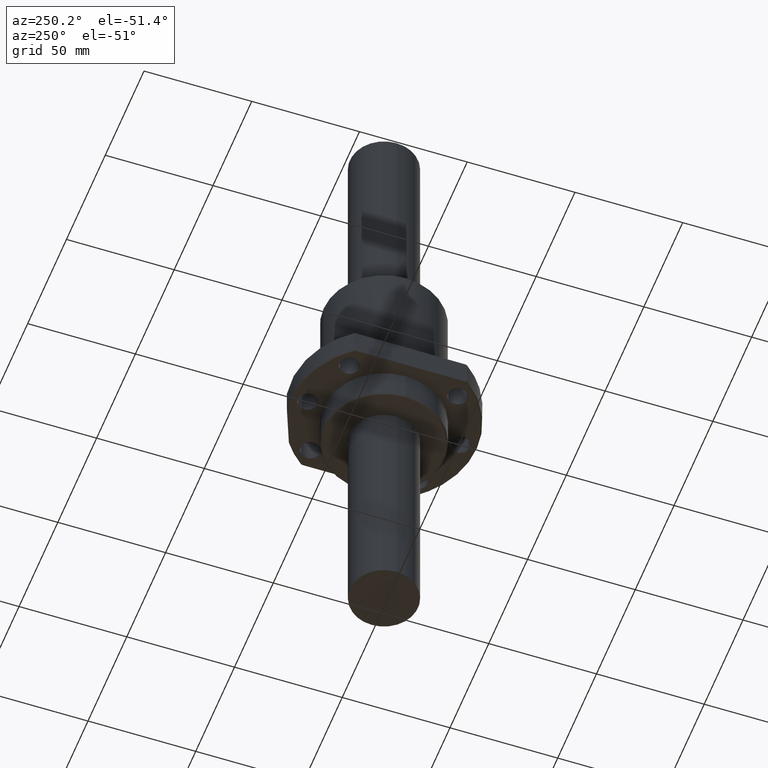
[diagram: clean part render]
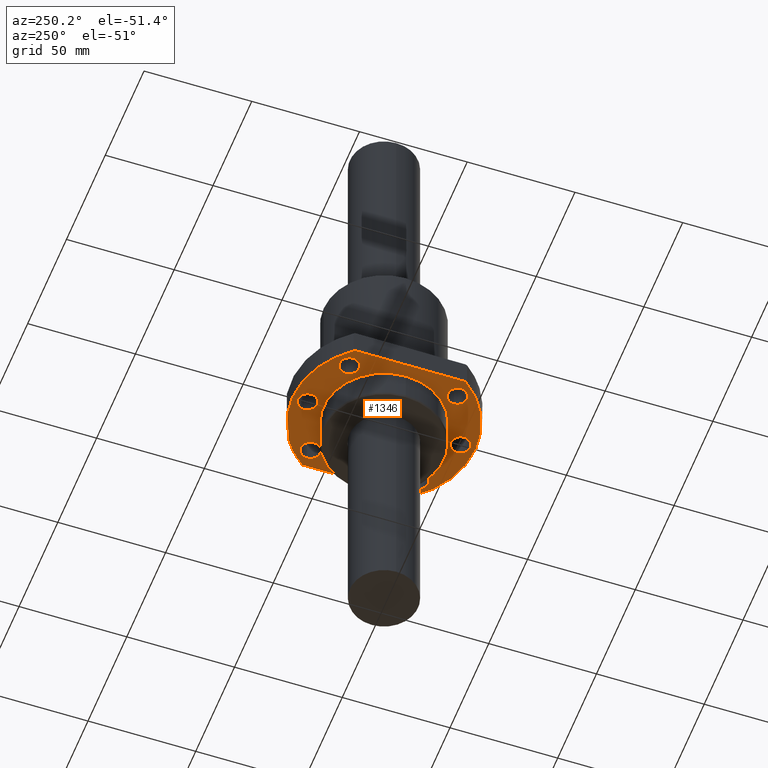
[diagram: same view with one face highlighted and labeled with its STEP entity id]
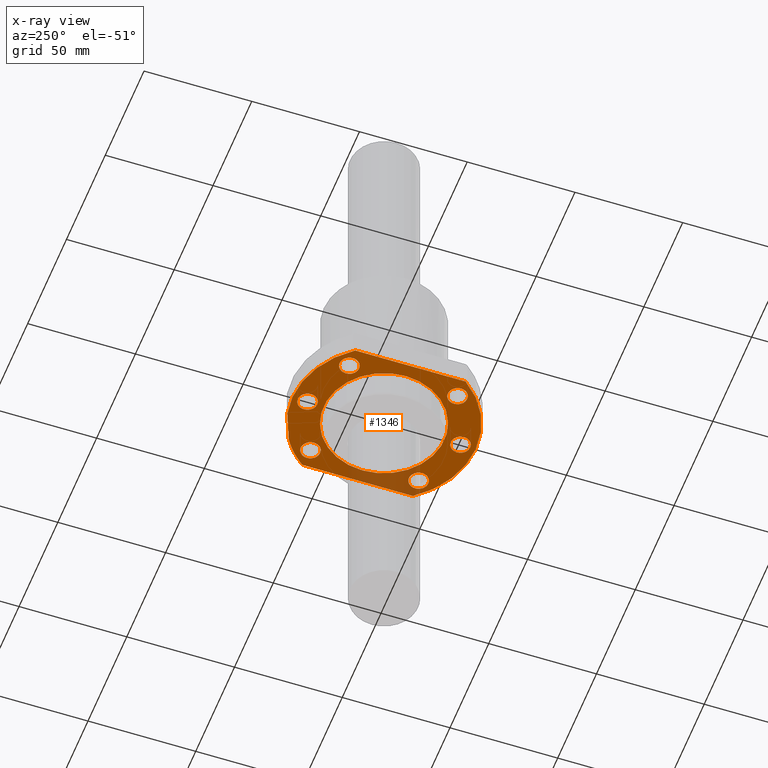
[diagram: x-ray of the same camera — body ghosted, the highlighted face saturated]
A machine part, auxiliary view. The second image highlights one B-rep face of the part: STEP entity #1346.
The next image is the same camera in x-ray: the body ghosted, the highlighted face saturated — about 12% of this face is hidden behind the body in this view.
In plain terms, the highlighted planar face has unit normal (0, 0, 1).
Its self-contained STEP definition (entity closure, byte-faithful):
#19 = ORIENTED_EDGE ( 'NONE', *, *, #516, .F. ) ;
#35 = DIRECTION ( 'NONE',  ( 1.000000000000000000, 0.0000000000000000000, 0.0000000000000000000 ) ) ;
#43 = DIRECTION ( 'NONE',  ( 0.0000000000000000000, -0.0000000000000000000, 1.000000000000000000 ) ) ;
#45 = CARTESIAN_POINT ( 'NONE',  ( 25.10228000000000000, -25.10066200000000000, -13.99999400000000100 ) ) ;
#48 = CIRCLE ( 'NONE', #52, 27.99999610000000100 ) ;
#52 = AXIS2_PLACEMENT_3D ( 'NONE', #955, #941, #930 ) ;
#58 = AXIS2_PLACEMENT_3D ( 'NONE', #1819, #1816, #1815 ) ;
#72 = EDGE_CURVE ( 'NONE', #1467, #494, #294, .T. ) ;
#82 = CARTESIAN_POINT ( 'NONE',  ( 20.60228000000000000, 25.10066200000000000, -13.99999400000000100 ) ) ;
#92 = AXIS2_PLACEMENT_3D ( 'NONE', #996, #982, #979 ) ;
#101 = ORIENTED_EDGE ( 'NONE', *, *, #1875, .F. ) ;
#135 = AXIS2_PLACEMENT_3D ( 'NONE', #970, #959, #957 ) ;
#138 = ORIENTED_EDGE ( 'NONE', *, *, #291, .F. ) ;
#147 = CARTESIAN_POINT ( 'NONE',  ( -25.10230999999999900, 25.10063199999999700, -13.99999400000000100 ) ) ;
#166 = VERTEX_POINT ( 'NONE', #1122 ) ;
#176 = CIRCLE ( 'NONE', #806, 4.500000000000000900 ) ;
#186 = CARTESIAN_POINT ( 'NONE',  ( -29.60230999999999900, -25.10063199999999700, -13.99999400000000100 ) ) ;
#196 = CARTESIAN_POINT ( 'NONE',  ( -4.500137000000001400, -35.49833700000000600, -13.99999400000000100 ) ) ;
#198 = CARTESIAN_POINT ( 'NONE',  ( 33.99961900000000300, 25.63834637422642600, -13.99999400000000100 ) ) ;
#229 = CARTESIAN_POINT ( 'NONE',  ( -20.60230999999999900, 25.10063199999999700, -13.99999400000000100 ) ) ;
#252 = FACE_BOUND ( 'NONE', #1088, .T. ) ;
#258 = AXIS2_PLACEMENT_3D ( 'NONE', #1072, #1070, #1060 ) ;
#291 = EDGE_CURVE ( 'NONE', #1506, #1558, #1512, .T. ) ;
#294 = CIRCLE ( 'NONE', #1478, 4.500000000000000900 ) ;
#309 = EDGE_CURVE ( 'NONE', #1906, #1572, #700, .T. ) ;
#319 = FACE_BOUND ( 'NONE', #1759, .T. ) ;
#324 = DIRECTION ( 'NONE',  ( 0.0000000000000000000, -0.0000000000000000000, 1.000000000000000000 ) ) ;
#391 = CARTESIAN_POINT ( 'NONE',  ( 29.60228000000000000, -25.10066200000000000, -13.99999400000000100 ) ) ;
#405 = DIRECTION ( 'NONE',  ( 1.000000000000000000, 0.0000000000000000000, 0.0000000000000000000 ) ) ;
#407 = DIRECTION ( 'NONE',  ( 0.0000000000000000000, -0.0000000000000000000, 1.000000000000000000 ) ) ;
#408 = AXIS2_PLACEMENT_3D ( 'NONE', #1840, #1829, #1825 ) ;
#416 = CARTESIAN_POINT ( 'NONE',  ( 25.10228000000000000, -25.10066200000000000, -13.99999400000000100 ) ) ;
#424 = CARTESIAN_POINT ( 'NONE',  ( -34.00038099999999700, 25.63733584041095900, -13.99999400222168000 ) ) ;
#448 = CARTESIAN_POINT ( 'NONE',  ( -29.60230999999999900, 25.10063199999999700, -13.99999400000000100 ) ) ;
#466 = CARTESIAN_POINT ( 'NONE',  ( 4.499863000000001300, 35.49833700000000600, -13.99999400000000100 ) ) ;
#479 = AXIS2_PLACEMENT_3D ( 'NONE', #1697, #1676, #1667 ) ;
#481 = CIRCLE ( 'NONE', #1241, 4.500000000000000900 ) ;
#487 = CARTESIAN_POINT ( 'NONE',  ( 20.60228000000000000, -25.10066200000000000, -13.99999400000000100 ) ) ;
#494 = VERTEX_POINT ( 'NONE', #391 ) ;
#501 = DIRECTION ( 'NONE',  ( 1.000000000000000000, 0.0000000000000000000, 0.0000000000000000000 ) ) ;
#506 = VERTEX_POINT ( 'NONE', #564 ) ;
#516 = EDGE_CURVE ( 'NONE', #506, #1485, #569, .T. ) ;
#564 = CARTESIAN_POINT ( 'NONE',  ( -4.500137000000001400, 35.49833700000000600, -13.99999400000000100 ) ) ;
#569 = CIRCLE ( 'NONE', #1490, 4.500000000000001800 ) ;
#570 = VECTOR ( 'NONE', #1712, 1000.000000000000000 ) ;
#575 = CIRCLE ( 'NONE', #707, 42.58284744999998100 ) ;
#581 = CIRCLE ( 'NONE', #135, 27.99999610000000100 ) ;
#584 = EDGE_CURVE ( 'NONE', #1485, #506, #853, .T. ) ;
#642 = DIRECTION ( 'NONE',  ( -1.000000000000000000, 0.0000000000000000000, 0.0000000000000000000 ) ) ;
#650 = DIRECTION ( 'NONE',  ( 0.0000000000000000000, 0.0000000000000000000, -1.000000000000000000 ) ) ;
#651 = CARTESIAN_POINT ( 'NONE',  ( 33.99961900000000300, -43.09384161899999600, -13.99999400000000100 ) ) ;
#660 = CARTESIAN_POINT ( 'NONE',  ( -22.55020344996156500, 36.12183856455494900, -13.99999399962962900 ) ) ;
#671 = PLANE ( 'NONE',  #1173 ) ;
#673 = ORIENTED_EDGE ( 'NONE', *, *, #1227, .F. ) ;
#698 = EDGE_LOOP ( 'NONE', ( #1005, #1063 ) ) ;
#700 = CIRCLE ( 'NONE', #830, 4.500000000000001800 ) ;
#704 = EDGE_CURVE ( 'NONE', #1223, #1513, #1807, .T. ) ;
#707 = AXIS2_PLACEMENT_3D ( 'NONE', #1272, #1260, #1258 ) ;
#734 = EDGE_CURVE ( 'NONE', #1569, #796, #1727, .T. ) ;
#737 = EDGE_LOOP ( 'NONE', ( #1147, #1157 ) ) ;
#752 = EDGE_CURVE ( 'NONE', #1642, #1027, #1371, .T. ) ;
#758 = VECTOR ( 'NONE', #1320, 1000.000000000000000 ) ;
#782 = EDGE_LOOP ( 'NONE', ( #101, #138 ) ) ;
#796 = VERTEX_POINT ( 'NONE', #1557 ) ;
#806 = AXIS2_PLACEMENT_3D ( 'NONE', #1298, #1287, #1285 ) ;
#823 = CARTESIAN_POINT ( 'NONE',  ( -9.575712611494507700, 41.49222366820119800, -13.99999400000000100 ) ) ;
#830 = AXIS2_PLACEMENT_3D ( 'NONE', #1339, #1545, #1790 ) ;
#841 = CARTESIAN_POINT ( 'NONE',  ( -0.0001369999999998802700, 35.49833700000000600, -13.99999400000000100 ) ) ;
#853 = CIRCLE ( 'NONE', #1053, 4.500000000000001800 ) ;
#863 = DIRECTION ( 'NONE',  ( 1.000000000000000000, 0.0000000000000000000, 0.0000000000000000000 ) ) ;
#872 = AXIS2_PLACEMENT_3D ( 'NONE', #1362, #1359, #1349 ) ;
#874 = DIRECTION ( 'NONE',  ( 0.0000000000000000000, -0.0000000000000000000, 1.000000000000000000 ) ) ;
#879 = CARTESIAN_POINT ( 'NONE',  ( -34.00038099999999700, -25.63733584119633200, -13.99999400269451900 ) ) ;
#880 = VERTEX_POINT ( 'NONE', #1437 ) ;
#895 = EDGE_LOOP ( 'NONE', ( #1238, #1262 ) ) ;
#904 = CARTESIAN_POINT ( 'NONE',  ( -25.10230999999999900, -25.10063199999999700, -13.99999400000000100 ) ) ;
#915 = EDGE_CURVE ( 'NONE', #1572, #1906, #1524, .T. ) ;
#920 = ORIENTED_EDGE ( 'NONE', *, *, #1877, .F. ) ;
#930 = DIRECTION ( 'NONE',  ( 1.000000000000000000, 0.0000000000000000000, 0.0000000000000000000 ) ) ;
#941 = DIRECTION ( 'NONE',  ( 0.0000000000000000000, 0.0000000000000000000, 1.000000000000000000 ) ) ;
#954 = EDGE_CURVE ( 'NONE', #1333, #1245, #1329, .T. ) ;
#955 = CARTESIAN_POINT ( 'NONE',  ( 0.0000000000000000000, 0.0000000000000000000, -13.99999400000000100 ) ) ;
#957 = DIRECTION ( 'NONE',  ( 1.000000000000000000, 0.0000000000000000000, 0.0000000000000000000 ) ) ;
#959 = DIRECTION ( 'NONE',  ( 0.0000000000000000000, 0.0000000000000000000, 1.000000000000000000 ) ) ;
#970 = CARTESIAN_POINT ( 'NONE',  ( 0.0000000000000000000, 0.0000000000000000000, -13.99999400000000100 ) ) ;
#973 = EDGE_CURVE ( 'NONE', #1027, #1642, #176, .T. ) ;
#975 = VERTEX_POINT ( 'NONE', #1270 ) ;
#979 = DIRECTION ( 'NONE',  ( -1.000000000000000000, 0.0000000000000000000, 0.0000000000000000000 ) ) ;
#982 = DIRECTION ( 'NONE',  ( -0.0000000000000000000, -0.0000000000000000000, 1.000000000000000000 ) ) ;
#996 = CARTESIAN_POINT ( 'NONE',  ( 0.0000000000000000000, 0.0000000000000000000, -13.99999400000000100 ) ) ;
#1005 = ORIENTED_EDGE ( 'NONE', *, *, #973, .F. ) ;
#1017 = EDGE_CURVE ( 'NONE', #796, #1223, #575, .T. ) ;
#1020 = FACE_OUTER_BOUND ( 'NONE', #1251, .T. ) ;
#1027 = VERTEX_POINT ( 'NONE', #1211 ) ;
#1032 = CIRCLE ( 'NONE', #258, 42.58284744999999600 ) ;
#1053 = AXIS2_PLACEMENT_3D ( 'NONE', #841, #1076, #1315 ) ;
#1056 = FACE_BOUND ( 'NONE', #895, .T. ) ;
#1060 = DIRECTION ( 'NONE',  ( -1.000000000000000000, 0.0000000000000000000, 0.0000000000000000000 ) ) ;
#1063 = ORIENTED_EDGE ( 'NONE', *, *, #752, .F. ) ;
#1068 = AXIS2_PLACEMENT_3D ( 'NONE', #147, #324, #501 ) ;
#1070 = DIRECTION ( 'NONE',  ( 0.0000000000000000000, 0.0000000000000000000, -1.000000000000000000 ) ) ;
#1072 = CARTESIAN_POINT ( 'NONE',  ( 0.0000000000000000000, 0.0000000000000000000, -13.99999400000000800 ) ) ;
#1076 = DIRECTION ( 'NONE',  ( 0.0000000000000000000, -0.0000000000000000000, 1.000000000000000000 ) ) ;
#1083 = FACE_BOUND ( 'NONE', #1536, .T. ) ;
#1088 = EDGE_LOOP ( 'NONE', ( #673, #920 ) ) ;
#1101 = EDGE_CURVE ( 'NONE', #1513, #1333, #1032, .T. ) ;
#1121 = ORIENTED_EDGE ( 'NONE', *, *, #584, .F. ) ;
#1122 = CARTESIAN_POINT ( 'NONE',  ( -27.99999610000000100, 3.429010560000337200E-015, -13.99999400000000100 ) ) ;
#1145 = EDGE_CURVE ( 'NONE', #1569, #1245, #1709, .T. ) ;
#1146 = FACE_BOUND ( 'NONE', #737, .T. ) ;
#1147 = ORIENTED_EDGE ( 'NONE', *, *, #309, .F. ) ;
#1157 = ORIENTED_EDGE ( 'NONE', *, *, #915, .F. ) ;
#1173 = AXIS2_PLACEMENT_3D ( 'NONE', #651, #650, #642 ) ;
#1185 = ORIENTED_EDGE ( 'NONE', *, *, #1693, .F. ) ;
#1193 = EDGE_CURVE ( 'NONE', #880, #166, #581, .T. ) ;
#1198 = CARTESIAN_POINT ( 'NONE',  ( -0.0001369999999998802700, 35.49833700000000600, -13.99999400000000100 ) ) ;
#1206 = EDGE_CURVE ( 'NONE', #166, #880, #48, .T. ) ;
#1211 = CARTESIAN_POINT ( 'NONE',  ( 29.60228000000000000, 25.10066200000000000, -13.99999400000000100 ) ) ;
#1222 = ORIENTED_EDGE ( 'NONE', *, *, #72, .F. ) ;
#1223 = VERTEX_POINT ( 'NONE', #879 ) ;
#1224 = FACE_BOUND ( 'NONE', #782, .T. ) ;
#1227 = EDGE_CURVE ( 'NONE', #975, #1577, #481, .T. ) ;
#1238 = ORIENTED_EDGE ( 'NONE', *, *, #1193, .F. ) ;
#1241 = AXIS2_PLACEMENT_3D ( 'NONE', #904, #874, #863 ) ;
#1245 = VERTEX_POINT ( 'NONE', #823 ) ;
#1251 = EDGE_LOOP ( 'NONE', ( #1265, #1344, #1341, #1396, #1395, #1414 ) ) ;
#1258 = DIRECTION ( 'NONE',  ( -1.000000000000000000, 0.0000000000000000000, 0.0000000000000000000 ) ) ;
#1260 = DIRECTION ( 'NONE',  ( 0.0000000000000000000, 0.0000000000000000000, -1.000000000000000000 ) ) ;
#1262 = ORIENTED_EDGE ( 'NONE', *, *, #1206, .F. ) ;
#1265 = ORIENTED_EDGE ( 'NONE', *, *, #1145, .T. ) ;
#1270 = CARTESIAN_POINT ( 'NONE',  ( -20.60230999999999900, -25.10063199999999700, -13.99999400000000100 ) ) ;
#1272 = CARTESIAN_POINT ( 'NONE',  ( 0.0000000000000000000, 0.0000000000000000000, -13.99999399999999600 ) ) ;
#1283 = FACE_BOUND ( 'NONE', #698, .T. ) ;
#1285 = DIRECTION ( 'NONE',  ( 1.000000000000000000, 0.0000000000000000000, 0.0000000000000000000 ) ) ;
#1287 = DIRECTION ( 'NONE',  ( 0.0000000000000000000, -0.0000000000000000000, 1.000000000000000000 ) ) ;
#1298 = CARTESIAN_POINT ( 'NONE',  ( 25.10228000000000000, 25.10066200000000000, -13.99999400000000100 ) ) ;
#1315 = DIRECTION ( 'NONE',  ( 1.000000000000000000, 0.0000000000000000000, 0.0000000000000000000 ) ) ;
#1320 = DIRECTION ( 'NONE',  ( 0.9239758091619514300, 0.3824509172214351500, -0.0000000000000000000 ) ) ;
#1328 = CARTESIAN_POINT ( 'NONE',  ( -16.06307499299999700, 38.80698270349999700, -13.99999400000000100 ) ) ;
#1329 = LINE ( 'NONE', #1328, #758 ) ;
#1333 = VERTEX_POINT ( 'NONE', #660 ) ;
#1339 = CARTESIAN_POINT ( 'NONE',  ( -0.0001369999999998802700, -35.49833700000000600, -13.99999400000000100 ) ) ;
#1341 = ORIENTED_EDGE ( 'NONE', *, *, #1101, .F. ) ;
#1344 = ORIENTED_EDGE ( 'NONE', *, *, #954, .F. ) ;
#1346 = ADVANCED_FACE ( 'NONE', ( #1283, #319, #1224, #252, #1146, #1083, #1056, #1020 ), #671, .F. ) ;
#1349 = DIRECTION ( 'NONE',  ( 1.000000000000000000, 0.0000000000000000000, 0.0000000000000000000 ) ) ;
#1359 = DIRECTION ( 'NONE',  ( 0.0000000000000000000, -0.0000000000000000000, 1.000000000000000000 ) ) ;
#1362 = CARTESIAN_POINT ( 'NONE',  ( -0.0001369999999998802700, -35.49833700000000600, -13.99999400000000100 ) ) ;
#1371 = CIRCLE ( 'NONE', #479, 4.500000000000000900 ) ;
#1395 = ORIENTED_EDGE ( 'NONE', *, *, #1017, .F. ) ;
#1396 = ORIENTED_EDGE ( 'NONE', *, *, #704, .F. ) ;
#1414 = ORIENTED_EDGE ( 'NONE', *, *, #734, .F. ) ;
#1415 = DIRECTION ( 'NONE',  ( 0.0000000000000000000, -0.0000000000000000000, 1.000000000000000000 ) ) ;
#1437 = CARTESIAN_POINT ( 'NONE',  ( 27.99999610000000100, 0.0000000000000000000, -13.99999400000000100 ) ) ;
#1445 = AXIS2_PLACEMENT_3D ( 'NONE', #45, #43, #35 ) ;
#1467 = VERTEX_POINT ( 'NONE', #487 ) ;
#1478 = AXIS2_PLACEMENT_3D ( 'NONE', #416, #407, #405 ) ;
#1485 = VERTEX_POINT ( 'NONE', #466 ) ;
#1490 = AXIS2_PLACEMENT_3D ( 'NONE', #1198, #1415, #1635 ) ;
#1506 = VERTEX_POINT ( 'NONE', #448 ) ;
#1512 = CIRCLE ( 'NONE', #1068, 4.500000000000000900 ) ;
#1513 = VERTEX_POINT ( 'NONE', #424 ) ;
#1524 = CIRCLE ( 'NONE', #872, 4.500000000000001800 ) ;
#1536 = EDGE_LOOP ( 'NONE', ( #1185, #1222 ) ) ;
#1545 = DIRECTION ( 'NONE',  ( 0.0000000000000000000, -0.0000000000000000000, 1.000000000000000000 ) ) ;
#1557 = CARTESIAN_POINT ( 'NONE',  ( 33.99961900000000300, -25.63834638050573400, -13.99999400378065900 ) ) ;
#1558 = VERTEX_POINT ( 'NONE', #229 ) ;
#1569 = VERTEX_POINT ( 'NONE', #198 ) ;
#1572 = VERTEX_POINT ( 'NONE', #196 ) ;
#1577 = VERTEX_POINT ( 'NONE', #186 ) ;
#1583 = CIRCLE ( 'NONE', #1445, 4.500000000000000900 ) ;
#1591 = CIRCLE ( 'NONE', #58, 4.500000000000000900 ) ;
#1635 = DIRECTION ( 'NONE',  ( 1.000000000000000000, 0.0000000000000000000, 0.0000000000000000000 ) ) ;
#1642 = VERTEX_POINT ( 'NONE', #82 ) ;
#1667 = DIRECTION ( 'NONE',  ( 1.000000000000000000, 0.0000000000000000000, 0.0000000000000000000 ) ) ;
#1676 = DIRECTION ( 'NONE',  ( 0.0000000000000000000, -0.0000000000000000000, 1.000000000000000000 ) ) ;
#1693 = EDGE_CURVE ( 'NONE', #494, #1467, #1583, .T. ) ;
#1697 = CARTESIAN_POINT ( 'NONE',  ( 25.10228000000000000, 25.10066200000000000, -13.99999400000000100 ) ) ;
#1709 = CIRCLE ( 'NONE', #92, 42.58284744999998800 ) ;
#1712 = DIRECTION ( 'NONE',  ( -0.0000000000000000000, -1.000000000000000000, -0.0000000000000000000 ) ) ;
#1717 = CARTESIAN_POINT ( 'NONE',  ( 33.99961900000000300, 0.0000000000000000000, -13.99999400000000100 ) ) ;
#1727 = LINE ( 'NONE', #1717, #570 ) ;
#1759 = EDGE_LOOP ( 'NONE', ( #1121, #19 ) ) ;
#1782 = CARTESIAN_POINT ( 'NONE',  ( 4.499863000000001300, -35.49833700000000600, -13.99999400000000100 ) ) ;
#1786 = DIRECTION ( 'NONE',  ( 0.0000000000000000000, 1.000000000000000000, 0.0000000000000000000 ) ) ;
#1790 = DIRECTION ( 'NONE',  ( 1.000000000000000000, 0.0000000000000000000, 0.0000000000000000000 ) ) ;
#1795 = CARTESIAN_POINT ( 'NONE',  ( -34.00038099999999700, 0.0000000000000000000, -13.99999400000000100 ) ) ;
#1807 = LINE ( 'NONE', #1795, #1932 ) ;
#1815 = DIRECTION ( 'NONE',  ( 1.000000000000000000, 0.0000000000000000000, 0.0000000000000000000 ) ) ;
#1816 = DIRECTION ( 'NONE',  ( 0.0000000000000000000, -0.0000000000000000000, 1.000000000000000000 ) ) ;
#1819 = CARTESIAN_POINT ( 'NONE',  ( -25.10230999999999900, -25.10063199999999700, -13.99999400000000100 ) ) ;
#1825 = DIRECTION ( 'NONE',  ( 1.000000000000000000, 0.0000000000000000000, 0.0000000000000000000 ) ) ;
#1829 = DIRECTION ( 'NONE',  ( 0.0000000000000000000, -0.0000000000000000000, 1.000000000000000000 ) ) ;
#1840 = CARTESIAN_POINT ( 'NONE',  ( -25.10230999999999900, 25.10063199999999700, -13.99999400000000100 ) ) ;
#1875 = EDGE_CURVE ( 'NONE', #1558, #1506, #1933, .T. ) ;
#1877 = EDGE_CURVE ( 'NONE', #1577, #975, #1591, .T. ) ;
#1906 = VERTEX_POINT ( 'NONE', #1782 ) ;
#1932 = VECTOR ( 'NONE', #1786, 1000.000000000000000 ) ;
#1933 = CIRCLE ( 'NONE', #408, 4.500000000000000900 ) ;